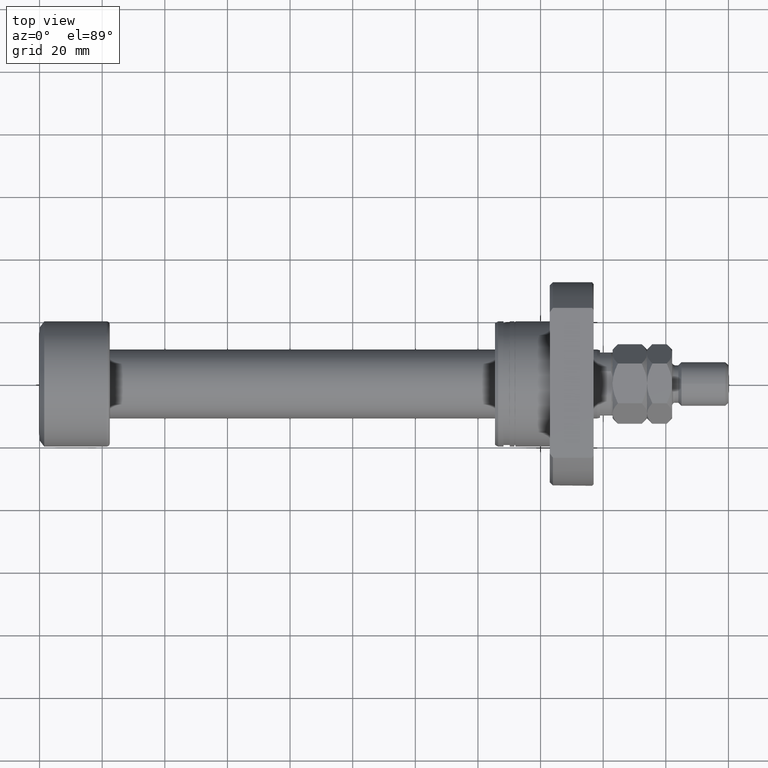
[diagram: clean part render]
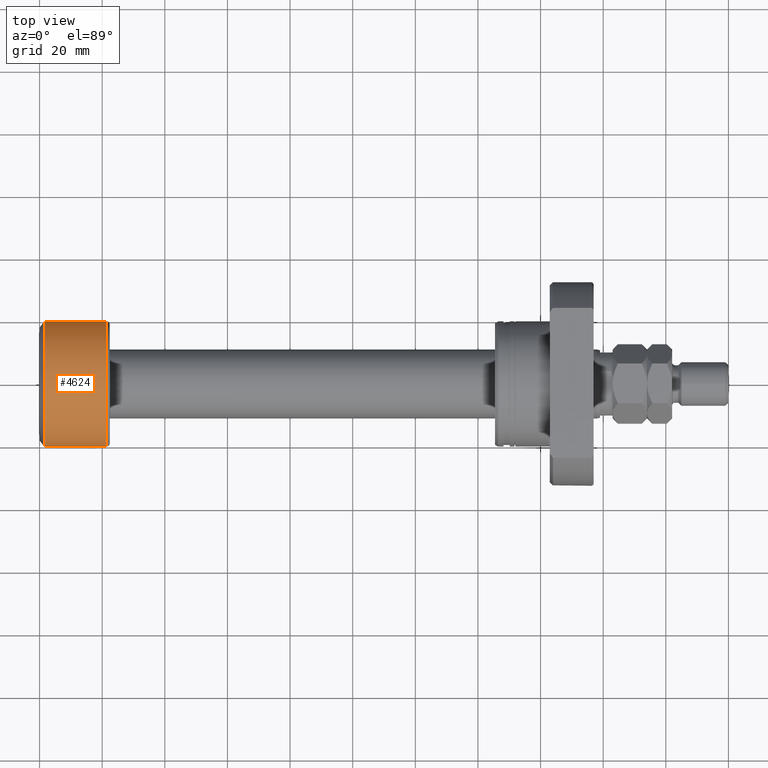
[diagram: same view with one face highlighted and labeled with its STEP entity id]
A machine part, top view. The second image highlights one B-rep face of the part: STEP entity #4624.
In plain terms, the highlighted cylindrical surface (partial cylindrical patch) has radius 20 mm, axis along (-1, -0, -0).
Its self-contained STEP definition (entity closure, byte-faithful):
#124 = CARTESIAN_POINT ( 'NONE',  ( 2.139084644138131786E-16, -20.00000000000000000, 0.000000000000000000 ) ) ;
#205 = AXIS2_PLACEMENT_3D ( 'NONE', #3738, #2562, #4794 ) ;
#472 = DIRECTION ( 'NONE',  ( -1.000000000000000000, -1.069542322069065801E-17, -0.000000000000000000 ) ) ;
#581 = VERTEX_POINT ( 'NONE', #4369 ) ;
#1072 = DIRECTION ( 'NONE',  ( 0.000000000000000000, -1.000000000000000000, 0.000000000000000000 ) ) ;
#1148 = LINE ( 'NONE', #124, #4354 ) ;
#1265 = CIRCLE ( 'NONE', #4138, 20.00000000000000000 ) ;
#1278 = VERTEX_POINT ( 'NONE', #4396 ) ;
#1402 = EDGE_CURVE ( 'NONE', #4773, #2278, #1148, .T. ) ;
#1461 = CARTESIAN_POINT ( 'NONE',  ( -2.139084644138131786E-16, 20.00000000000000000, 2.449293598294706513E-15 ) ) ;
#1462 = ORIENTED_EDGE ( 'NONE', *, *, #1402, .F. ) ;
#1592 = DIRECTION ( 'NONE',  ( -1.000000000000000000, -1.069542322069065801E-17, -0.000000000000000000 ) ) ;
#1625 = CARTESIAN_POINT ( 'NONE',  ( 21.40000000000000924, -20.00000000000000000, 0.000000000000000000 ) ) ;
#1831 = VECTOR ( 'NONE', #2190, 1000.000000000000000 ) ;
#1851 = FACE_OUTER_BOUND ( 'NONE', #3538, .T. ) ;
#1958 = DIRECTION ( 'NONE',  ( 1.084202172485504434E-17, -1.000000000000000000, 0.000000000000000000 ) ) ;
#2190 = DIRECTION ( 'NONE',  ( -1.000000000000000000, -1.069542322069065801E-17, -0.000000000000000000 ) ) ;
#2278 = VERTEX_POINT ( 'NONE', #2388 ) ;
#2282 = EDGE_CURVE ( 'NONE', #2278, #1278, #1265, .T. ) ;
#2343 = ORIENTED_EDGE ( 'NONE', *, *, #4180, .T. ) ;
#2388 = CARTESIAN_POINT ( 'NONE',  ( 1.500000000000002887, -20.00000000000000000, 2.449293598294706513E-15 ) ) ;
#2452 = AXIS2_PLACEMENT_3D ( 'NONE', #2907, #4477, #1072 ) ;
#2562 = DIRECTION ( 'NONE',  ( -1.000000000000000000, -1.069542322069065801E-17, -0.000000000000000000 ) ) ;
#2907 = CARTESIAN_POINT ( 'NONE',  ( 21.40000000000000924, 2.288820569227802283E-16, 0.000000000000000000 ) ) ;
#2999 = CYLINDRICAL_SURFACE ( 'NONE', #205, 20.00000000000000000 ) ;
#3094 = CARTESIAN_POINT ( 'NONE',  ( 1.500000000000002442, 1.604313483103601552E-17, 0.000000000000000000 ) ) ;
#3202 = ORIENTED_EDGE ( 'NONE', *, *, #4647, .T. ) ;
#3230 = CIRCLE ( 'NONE', #2452, 20.00000000000000000 ) ;
#3538 = EDGE_LOOP ( 'NONE', ( #3202, #2343, #4512, #1462 ) ) ;
#3738 = CARTESIAN_POINT ( 'NONE',  ( 0.000000000000000000, 0.000000000000000000, 0.000000000000000000 ) ) ;
#4138 = AXIS2_PLACEMENT_3D ( 'NONE', #3094, #472, #1958 ) ;
#4180 = EDGE_CURVE ( 'NONE', #581, #1278, #4435, .T. ) ;
#4354 = VECTOR ( 'NONE', #1592, 1000.000000000000000 ) ;
#4369 = CARTESIAN_POINT ( 'NONE',  ( 21.40000000000000924, 20.00000000000000000, 2.449293598294706513E-15 ) ) ;
#4396 = CARTESIAN_POINT ( 'NONE',  ( 1.500000000000002442, 20.00000000000000000, 0.000000000000000000 ) ) ;
#4435 = LINE ( 'NONE', #1461, #1831 ) ;
#4477 = DIRECTION ( 'NONE',  ( -1.000000000000000000, -1.069542322069065801E-17, -0.000000000000000000 ) ) ;
#4512 = ORIENTED_EDGE ( 'NONE', *, *, #2282, .F. ) ;
#4624 = ADVANCED_FACE ( 'NONE', ( #1851 ), #2999, .T. ) ;
#4647 = EDGE_CURVE ( 'NONE', #4773, #581, #3230, .T. ) ;
#4773 = VERTEX_POINT ( 'NONE', #1625 ) ;
#4794 = DIRECTION ( 'NONE',  ( 1.069542322069065955E-17, -1.000000000000000000, 0.000000000000000000 ) ) ;